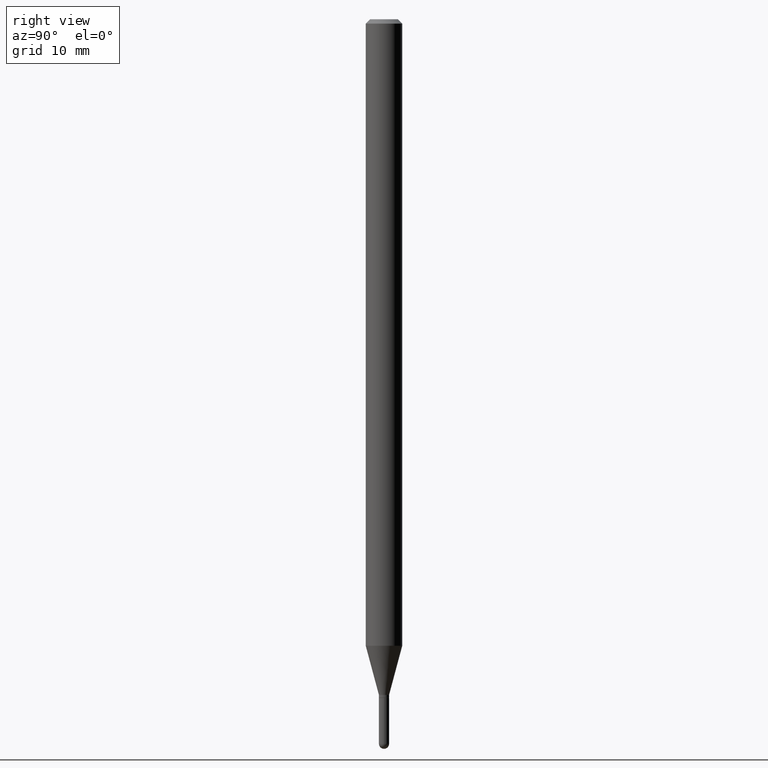
[diagram: clean part render]
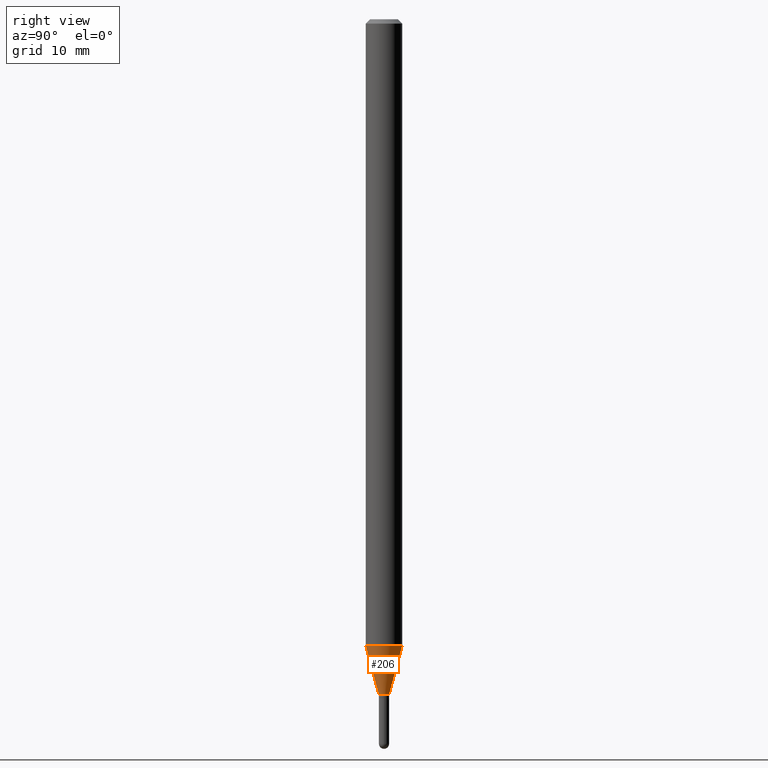
[diagram: same view with one face highlighted and labeled with its STEP entity id]
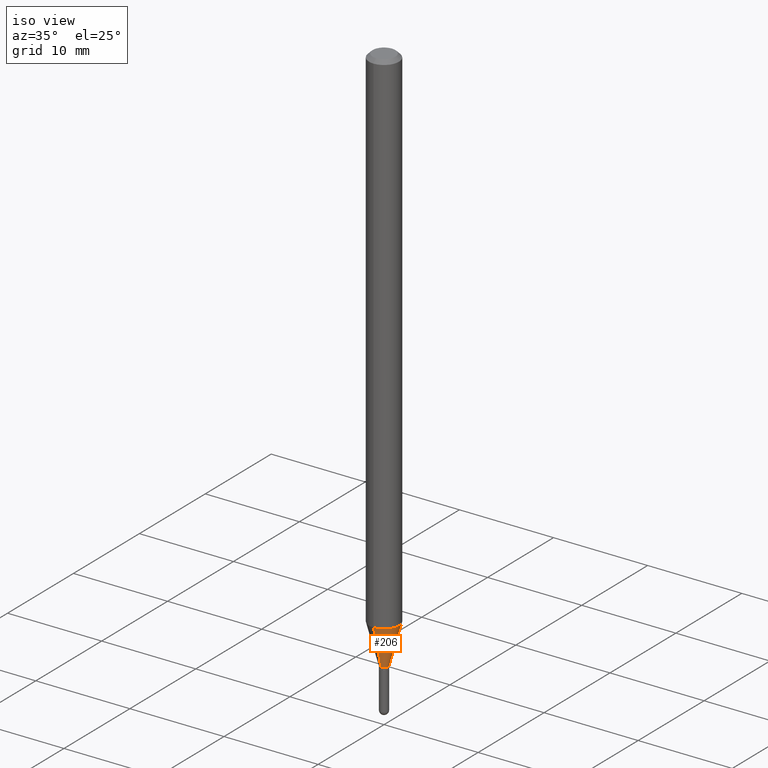
[diagram: same view with one face highlighted and labeled with its STEP entity id]
A machine part, right view. The second image highlights one B-rep face of the part: STEP entity #206.
A second angle (iso view) of the same face is appended — the face is thin or edge-on in the first view.
In plain terms, the highlighted conical surface has half-angle 15 deg.
Its self-contained STEP definition (entity closure, byte-faithful):
#7 = AXIS2_PLACEMENT_3D ( 'NONE', #343, #67, #501 ) ;
#8 = CARTESIAN_POINT ( 'NONE',  ( 5.661330320498851660E-29, -8.082679006489650230E-15, -2.314999999999999947 ) ) ;
#67 = DIRECTION ( 'NONE',  ( -2.445499058530821695E-29, 3.491438015762267766E-15, 1.000000000000000000 ) ) ;
#69 = LINE ( 'NONE', #428, #289 ) ;
#70 = AXIS2_PLACEMENT_3D ( 'NONE', #268, #75, #509 ) ;
#75 = DIRECTION ( 'NONE',  ( -2.445499058530821695E-29, 3.491438015762267766E-15, 1.000000000000000000 ) ) ;
#76 = ORIENTED_EDGE ( 'NONE', *, *, #187, .F. ) ;
#77 = EDGE_CURVE ( 'NONE', #381, #248, #236, .T. ) ;
#80 = CARTESIAN_POINT ( 'NONE',  ( 4.440892098501148782E-16, 0.06249999999999247824, -2.147057713659400235 ) ) ;
#82 = CARTESIAN_POINT ( 'NONE',  ( -1.222018468594506458E-16, -0.01750000000000773853, -2.314999999999999947 ) ) ;
#85 = CIRCLE ( 'NONE', #254, 0.01749999999999965472 ) ;
#90 = ORIENTED_EDGE ( 'NONE', *, *, #77, .F. ) ;
#98 = VERTEX_POINT ( 'NONE', #462 ) ;
#133 = EDGE_LOOP ( 'NONE', ( #402, #423, #90, #76 ) ) ;
#137 = EDGE_CURVE ( 'NONE', #98, #248, #69, .T. ) ;
#158 = LINE ( 'NONE', #82, #384 ) ;
#165 = DIRECTION ( 'NONE',  ( -6.982962677686265922E-15, -1.000000000000000000, 0.000000000000000000 ) ) ;
#172 = CARTESIAN_POINT ( 'NONE',  ( -4.364351673553391609E-16, -0.06250000000000749401, -2.147057713659399347 ) ) ;
#187 = EDGE_CURVE ( 'NONE', #362, #381, #158, .T. ) ;
#206 = ADVANCED_FACE ( 'NONE', ( #234 ), #360, .T. ) ;
#234 = FACE_OUTER_BOUND ( 'NONE', #133, .T. ) ;
#236 = CIRCLE ( 'NONE', #7, 0.06250000000000000000 ) ;
#238 = CARTESIAN_POINT ( 'NONE',  ( -1.222018468594506458E-16, -0.01750000000000773853, -2.314999999999999947 ) ) ;
#248 = VERTEX_POINT ( 'NONE', #80 ) ;
#254 = AXIS2_PLACEMENT_3D ( 'NONE', #8, #286, #165 ) ;
#268 = CARTESIAN_POINT ( 'NONE',  ( 5.661330320498851660E-29, -8.082679006489650230E-15, -2.314999999999999947 ) ) ;
#286 = DIRECTION ( 'NONE',  ( -2.445499058530821695E-29, 3.491438015762267766E-15, 1.000000000000000000 ) ) ;
#289 = VECTOR ( 'NONE', #350, 39.37007874015748143 ) ;
#328 = EDGE_CURVE ( 'NONE', #362, #98, #85, .T. ) ;
#343 = CARTESIAN_POINT ( 'NONE',  ( 5.250627617365400898E-29, -7.496318923506046239E-15, -2.147057713659399791 ) ) ;
#350 = DIRECTION ( 'NONE',  ( 1.839019923739599526E-15, 0.2588190451025248473, 0.9659258262890670910 ) ) ;
#360 = CONICAL_SURFACE ( 'NONE', #70, 0.01749999999999965472, 0.2617993877991501850 ) ;
#362 = VERTEX_POINT ( 'NONE', #238 ) ;
#381 = VERTEX_POINT ( 'NONE', #172 ) ;
#384 = VECTOR ( 'NONE', #387, 39.37007874015749564 ) ;
#387 = DIRECTION ( 'NONE',  ( -1.807323732225329350E-15, -0.2588190451025180194, 0.9659258262890689783 ) ) ;
#402 = ORIENTED_EDGE ( 'NONE', *, *, #328, .T. ) ;
#423 = ORIENTED_EDGE ( 'NONE', *, *, #137, .T. ) ;
#428 = CARTESIAN_POINT ( 'NONE',  ( 1.243449787580716799E-16, 0.01749999999999157438, -2.314999999999999947 ) ) ;
#462 = CARTESIAN_POINT ( 'NONE',  ( 2.842170943040934763E-16, 0.01749999999999157438, -2.314999999999999947 ) ) ;
#501 = DIRECTION ( 'NONE',  ( -6.982962677686265922E-15, -1.000000000000000000, 4.370956789862821150E-15 ) ) ;
#509 = DIRECTION ( 'NONE',  ( -6.982962677686265922E-15, -1.000000000000000000, 0.000000000000000000 ) ) ;